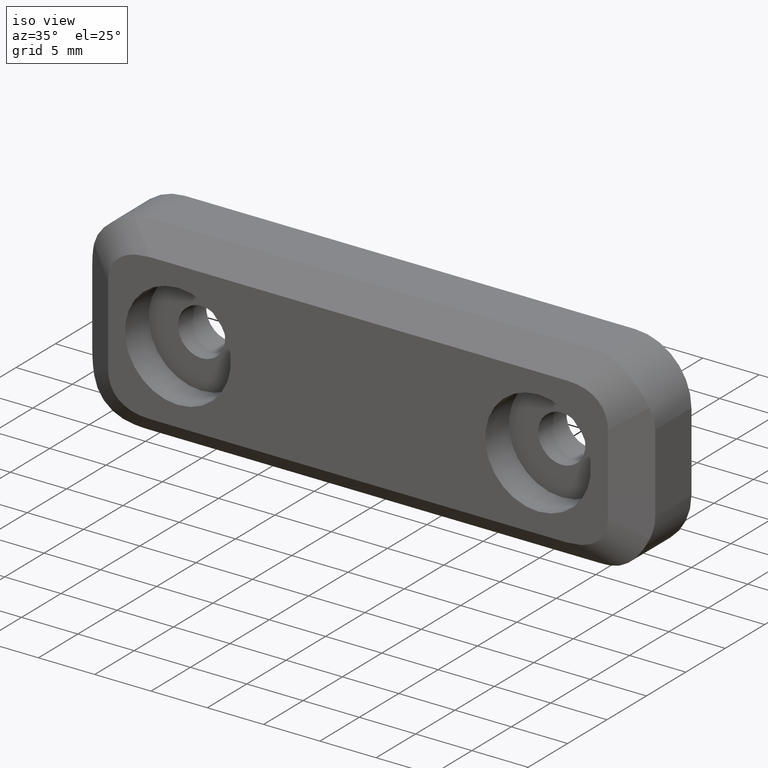
[diagram: clean part render]
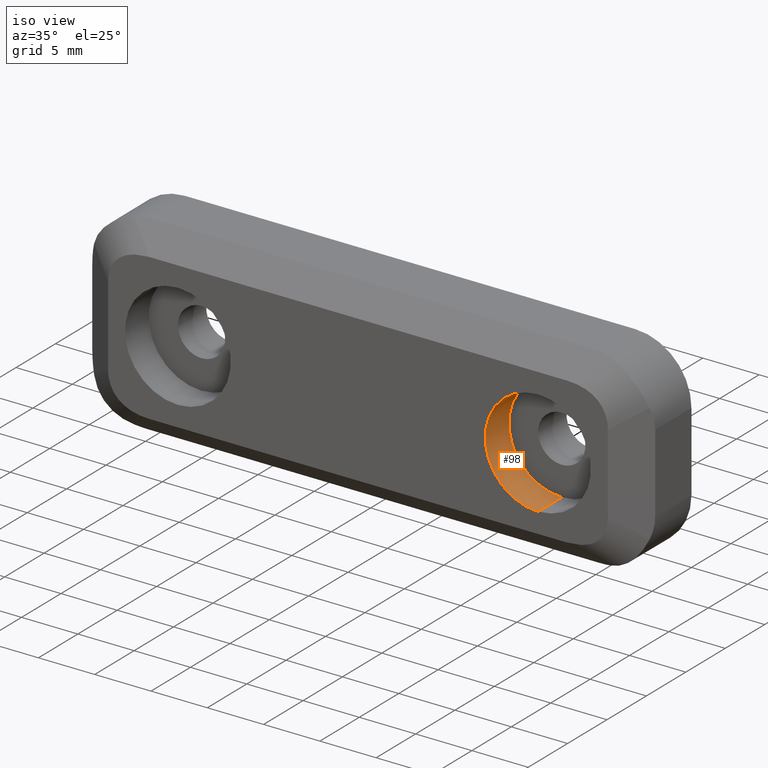
[diagram: same view with one face highlighted and labeled with its STEP entity id]
A machine part, iso view. The second image highlights one B-rep face of the part: STEP entity #98.
In plain terms, the highlighted cylindrical surface (partial cylindrical patch) has radius 4.7 mm, axis along (0, 1, 0).
Its self-contained STEP definition (entity closure, byte-faithful):
#98=ADVANCED_FACE('',(#340),#339,.F.);
#339=CYLINDRICAL_SURFACE('',#513,4.70000000000E+00);
#340=FACE_OUTER_BOUND('',#514,.T.);
#510=CARTESIAN_POINT('',(1.60000000000E+01,0.00000000000E+00,0.00000000000E+00));
#511=DIRECTION('',(-0.00000000000E+00,1.00000000000E+00,-0.00000000000E+00));
#512=DIRECTION('',(-0.00000000000E+00,-0.00000000000E+00,1.00000000000E+00));
#513=AXIS2_PLACEMENT_3D('',#510,#511,#512);
#514=EDGE_LOOP('',(#659,#660,#661,#662));
#659=ORIENTED_EDGE('',*,*,#703,.F.);
#660=ORIENTED_EDGE('',*,*,#745,.F.);
#661=ORIENTED_EDGE('',*,*,#728,.T.);
#662=ORIENTED_EDGE('',*,*,#746,.T.);
#703=EDGE_CURVE('',#912,#911,#919,.T.);
#728=EDGE_CURVE('',#1084,#1085,#1086,.T.);
#745=EDGE_CURVE('',#1084,#912,#1195,.T.);
#746=EDGE_CURVE('',#1085,#911,#1201,.T.);
#911=VERTEX_POINT('',#1368);
#912=VERTEX_POINT('',#1369);
#919=CIRCLE('',#1377,4.70000000000E+00);
#1084=VERTEX_POINT('',#1473);
#1085=VERTEX_POINT('',#1474);
#1086=CIRCLE('',#1478,4.70000000000E+00);
#1195=(BOUNDED_CURVE() B_SPLINE_CURVE(1,(#1539,#1540),.UNSPECIFIED.,.F.,.F.) B_SPLINE_CURVE_WITH_KNOTS((2,2),(8.33333233997E-02,9.16666663280E-01),.UNSPECIFIED.) CURVE() GEOMETRIC_REPRESENTATION_ITEM() RATIONAL_B_SPLINE_CURVE((1.00000000000E+00,1.00000000000E+00)) REPRESENTATION_ITEM('') );
#1201=(BOUNDED_CURVE() B_SPLINE_CURVE(1,(#1541,#1542),.UNSPECIFIED.,.F.,.F.) B_SPLINE_CURVE_WITH_KNOTS((2,2),(8.33333333333E-02,9.16666666667E-01),.UNSPECIFIED.) CURVE() GEOMETRIC_REPRESENTATION_ITEM() RATIONAL_B_SPLINE_CURVE((7.50000000000E-01,7.50000000000E-01)) REPRESENTATION_ITEM('') );
#1368=CARTESIAN_POINT('',(1.60000000000E+01,-3.60000000000E+00,-4.70000000000E+00));
#1369=CARTESIAN_POINT('',(1.60000000000E+01,-3.60000000000E+00,4.70000000000E+00));
#1374=CARTESIAN_POINT('',(1.60000000000E+01,-3.60000000000E+00,0.00000000000E+00));
#1375=DIRECTION('',(0.00000000000E+00,-1.00000000000E+00,-0.00000000000E+00));
#1376=DIRECTION('',(-1.22460635382E-16,0.00000000000E+00,-1.00000000000E+00));
#1377=AXIS2_PLACEMENT_3D('',#1374,#1375,#1376);
#1473=CARTESIAN_POINT('',(1.60000000000E+01,-6.60000000000E+00,4.70000000000E+00));
#1474=CARTESIAN_POINT('',(1.60000000000E+01,-6.60000000000E+00,-4.70000000000E+00));
#1475=CARTESIAN_POINT('',(1.60000000000E+01,-6.60000000000E+00,0.00000000000E+00));
#1476=DIRECTION('',(0.00000000000E+00,-1.00000000000E+00,-0.00000000000E+00));
#1477=DIRECTION('',(-1.22460635382E-16,0.00000000000E+00,-1.00000000000E+00));
#1478=AXIS2_PLACEMENT_3D('',#1475,#1476,#1477);
#1539=CARTESIAN_POINT('',(1.60000000000E+01,-6.60000003576E+00,4.70000000000E+00));
#1540=CARTESIAN_POINT('',(1.60000000000E+01,-3.60000001219E+00,4.70000000000E+00));
#1541=CARTESIAN_POINT('',(1.60000000000E+01,-6.60000000000E+00,-4.70000000000E+00));
#1542=CARTESIAN_POINT('',(1.60000000000E+01,-3.60000000000E+00,-4.70000000000E+00));